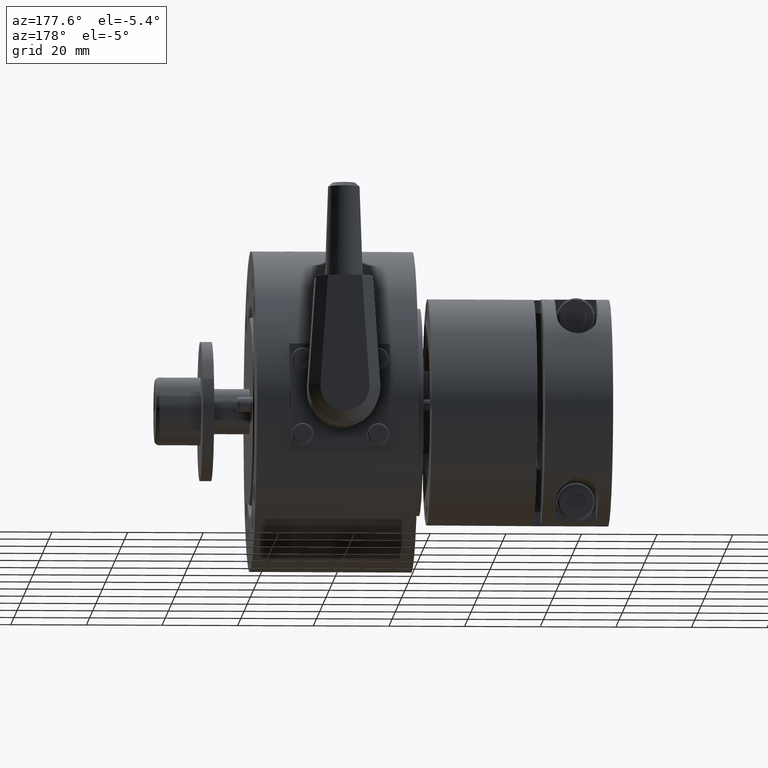
[diagram: clean part render]
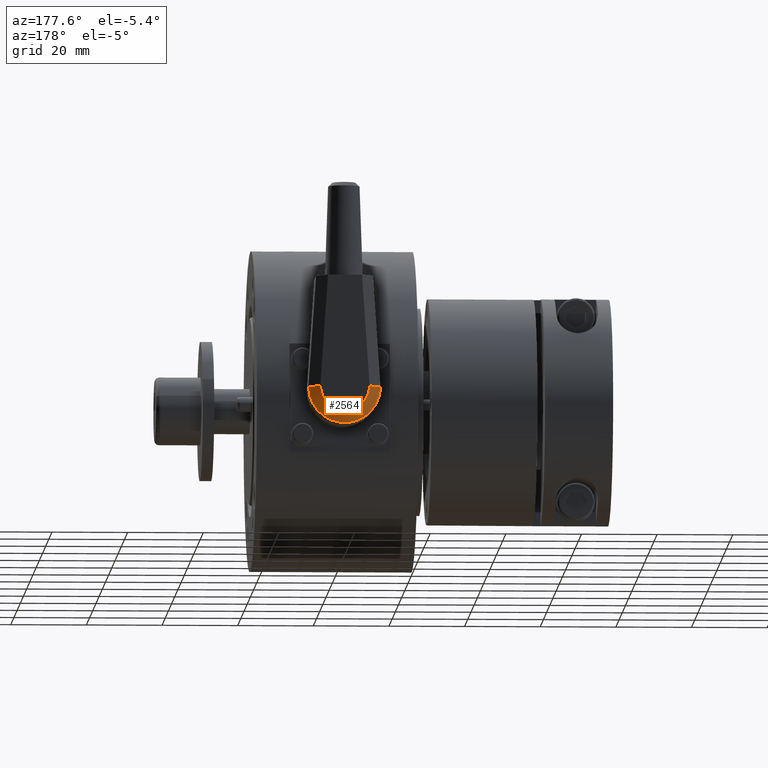
[diagram: same view with one face highlighted and labeled with its STEP entity id]
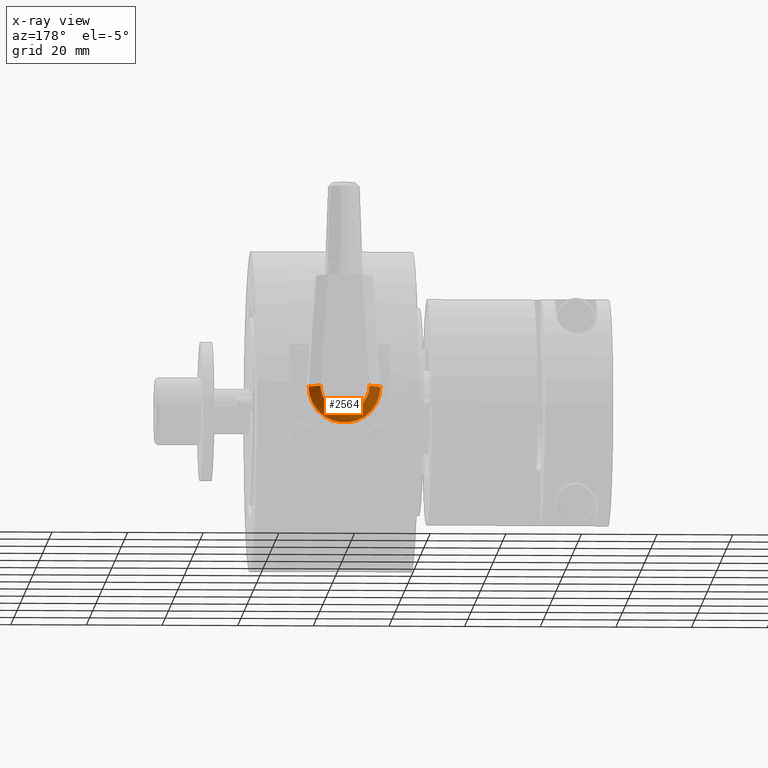
[diagram: x-ray of the same camera — body ghosted, the highlighted face saturated]
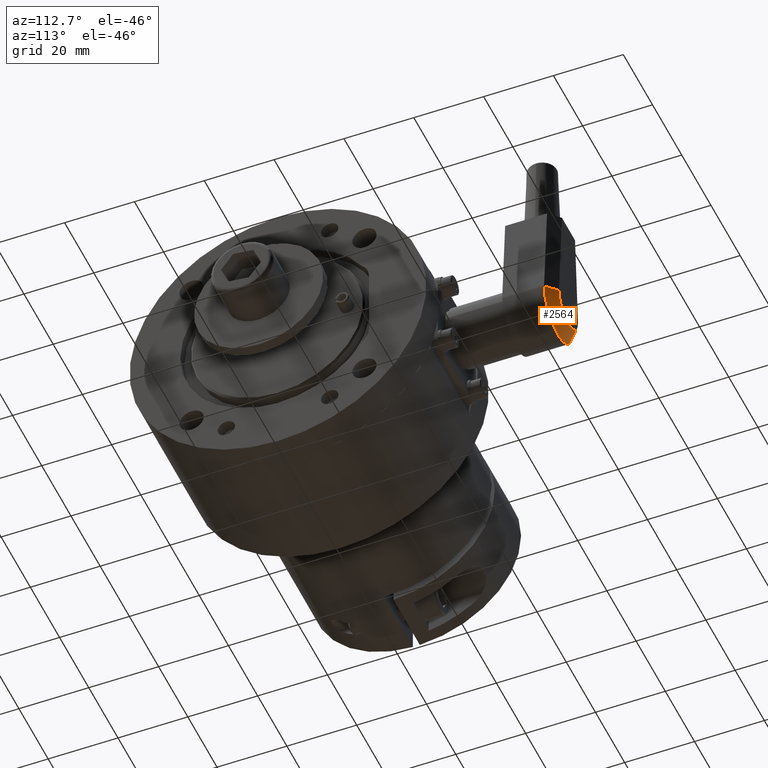
[diagram: same view with one face highlighted and labeled with its STEP entity id]
A machine part, auxiliary view. The second image highlights one B-rep face of the part: STEP entity #2564.
The next image is the same camera in x-ray: the body ghosted, the highlighted face saturated — about 0% of this face is hidden behind the body in this view.
A second angle (auxiliary view) of the same face is appended — the face is thin or edge-on in the first view.
In plain terms, the highlighted conical surface has half-angle 45 deg.
Its self-contained STEP definition (entity closure, byte-faithful):
#663 = ORIENTED_EDGE ( 'NONE', *, *, #7201, .T. ) ;
#719 = VERTEX_POINT ( 'NONE', #18643 ) ;
#768 = DIRECTION ( 'NONE',  ( 0.000000000000000000, 0.000000000000000000, 1.000000000000000000 ) ) ;
#859 = CARTESIAN_POINT ( 'NONE',  ( 32.64483344105960327, 24.06818609026539946, 15.00000000000000178 ) ) ;
#2298 = CARTESIAN_POINT ( 'NONE',  ( 24.64483344105960327, 24.06818609026539946, 13.50000000000000000 ) ) ;
#2564 = ADVANCED_FACE ( 'NONE', ( #14847 ), #5452, .T. ) ;
#2851 = CARTESIAN_POINT ( 'NONE',  ( 40.64483344105960327, 24.06818609026539946, 13.50000000000000000 ) ) ;
#3945 = DIRECTION ( 'NONE',  ( 1.000000000000000000, 0.000000000000000000, 0.000000000000000000 ) ) ;
#4190 = EDGE_CURVE ( 'NONE', #5482, #13064, #13804, .T. ) ;
#4720 = ORIENTED_EDGE ( 'NONE', *, *, #16290, .T. ) ;
#4954 = LINE ( 'NONE', #2851, #11936 ) ;
#5452 = CONICAL_SURFACE ( 'NONE', #13085, 8.000000000000000000, 0.7853981625000003852 ) ;
#5482 = VERTEX_POINT ( 'NONE', #20091 ) ;
#6029 = EDGE_CURVE ( 'NONE', #719, #13064, #12518, .T. ) ;
#6388 = VECTOR ( 'NONE', #13430, 1000.000000000000114 ) ;
#6707 = ORIENTED_EDGE ( 'NONE', *, *, #6029, .T. ) ;
#7201 = EDGE_CURVE ( 'NONE', #5482, #10931, #16652, .T. ) ;
#8812 = CARTESIAN_POINT ( 'NONE',  ( 32.64483344105960327, 24.06818609026539946, 12.00000000000000000 ) ) ;
#9325 = CARTESIAN_POINT ( 'NONE',  ( 32.64483344105960327, 24.06818609026539946, 13.50000000000000000 ) ) ;
#10931 = VERTEX_POINT ( 'NONE', #11085 ) ;
#11085 = CARTESIAN_POINT ( 'NONE',  ( 39.14483344105960327, 24.06818609026539946, 15.00000000000000178 ) ) ;
#11840 = EDGE_LOOP ( 'NONE', ( #16782, #663, #4720, #6707 ) ) ;
#11936 = VECTOR ( 'NONE', #12609, 1000.000000000000114 ) ;
#12518 = CIRCLE ( 'NONE', #16539, 9.500000000000001776 ) ;
#12609 = DIRECTION ( 'NONE',  ( 0.7071067805519559712, 0.000000000000000000, -0.7071067818211389522 ) ) ;
#13064 = VERTEX_POINT ( 'NONE', #20148 ) ;
#13085 = AXIS2_PLACEMENT_3D ( 'NONE', #9325, #18579, #18642 ) ;
#13237 = DIRECTION ( 'NONE',  ( 1.000000000000000000, 0.000000000000000000, 0.000000000000000000 ) ) ;
#13430 = DIRECTION ( 'NONE',  ( -0.7071067805519559712, -8.659560554583427742E-17, -0.7071067818211389522 ) ) ;
#13804 = LINE ( 'NONE', #2298, #6388 ) ;
#14199 = AXIS2_PLACEMENT_3D ( 'NONE', #859, #15063, #13237 ) ;
#14847 = FACE_OUTER_BOUND ( 'NONE', #11840, .T. ) ;
#15063 = DIRECTION ( 'NONE',  ( 0.000000000000000000, 0.000000000000000000, -1.000000000000000000 ) ) ;
#16290 = EDGE_CURVE ( 'NONE', #10931, #719, #4954, .T. ) ;
#16539 = AXIS2_PLACEMENT_3D ( 'NONE', #8812, #768, #3945 ) ;
#16652 = CIRCLE ( 'NONE', #14199, 6.499999999999999112 ) ;
#16782 = ORIENTED_EDGE ( 'NONE', *, *, #4190, .F. ) ;
#18579 = DIRECTION ( 'NONE',  ( 0.000000000000000000, 0.000000000000000000, -1.000000000000000000 ) ) ;
#18642 = DIRECTION ( 'NONE',  ( 1.000000000000000000, 0.000000000000000000, 0.000000000000000000 ) ) ;
#18643 = CARTESIAN_POINT ( 'NONE',  ( 42.14483343836725737, 24.06818609026539946, 12.00000000000000000 ) ) ;
#20091 = CARTESIAN_POINT ( 'NONE',  ( 26.14483344105960327, 24.06818609026539946, 15.00000000000000178 ) ) ;
#20148 = CARTESIAN_POINT ( 'NONE',  ( 23.14483344375194918, 24.06818609026539946, 12.00000000000000000 ) ) ;